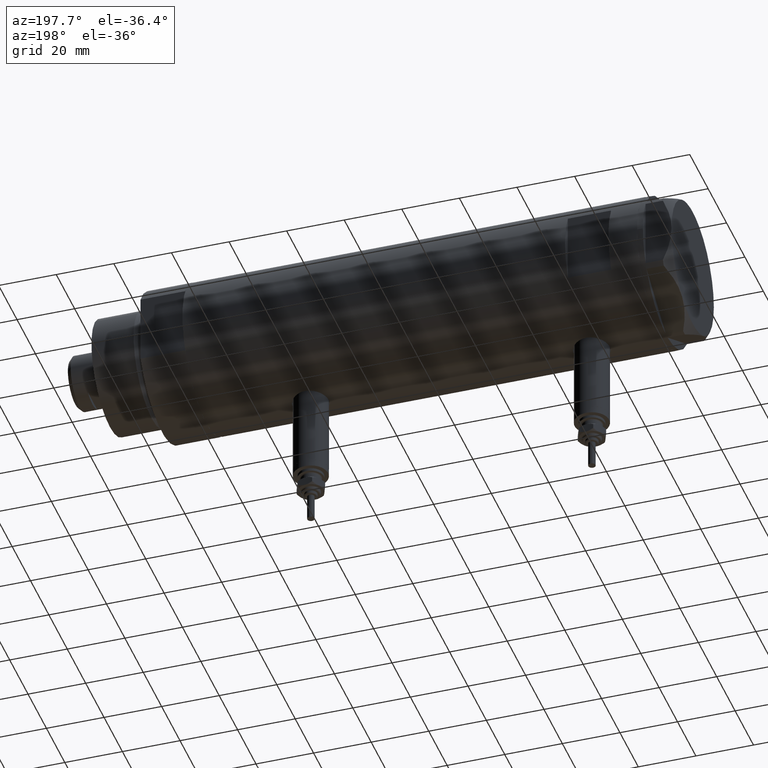
[diagram: clean part render]
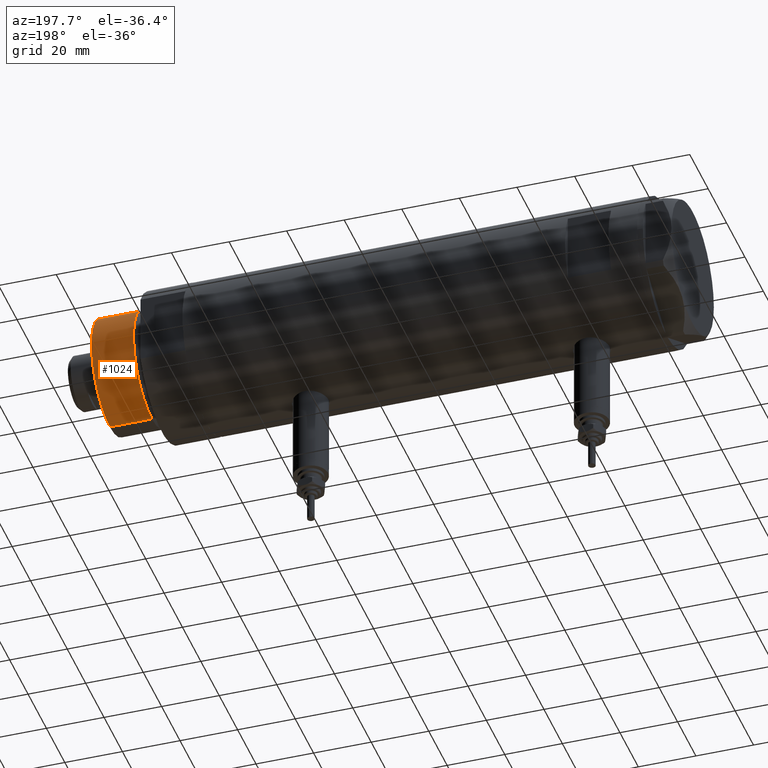
[diagram: same view with one face highlighted and labeled with its STEP entity id]
A machine part, auxiliary view. The second image highlights one B-rep face of the part: STEP entity #1024.
In plain terms, the highlighted cylindrical surface (partial cylindrical patch) has radius 20 mm, axis along (-1, -0, 0).
Its self-contained STEP definition (entity closure, byte-faithful):
#207 = VERTEX_POINT ( 'NONE', #4288 ) ;
#258 = CARTESIAN_POINT ( 'NONE',  ( 0.000000000000000000, 0.000000000000000000, 33.50000000000000000 ) ) ;
#360 = LINE ( 'NONE', #1350, #4497 ) ;
#462 = CYLINDRICAL_SURFACE ( 'NONE', #492, 19.99999999999999645 ) ;
#492 = AXIS2_PLACEMENT_3D ( 'NONE', #1314, #2412, #6215 ) ;
#613 = CIRCLE ( 'NONE', #3880, 19.99999999999999645 ) ;
#770 = VERTEX_POINT ( 'NONE', #2883 ) ;
#1024 = ADVANCED_FACE ( 'NONE', ( #6180 ), #462, .T. ) ;
#1314 = CARTESIAN_POINT ( 'NONE',  ( 0.000000000000000000, 0.000000000000000000, 33.50000000000000000 ) ) ;
#1350 = CARTESIAN_POINT ( 'NONE',  ( -19.99999999999999645, 0.000000000000000000, 33.50000000000000000 ) ) ;
#1432 = AXIS2_PLACEMENT_3D ( 'NONE', #3288, #2367, #3867 ) ;
#1789 = DIRECTION ( 'NONE',  ( -0.000000000000000000, -0.000000000000000000, -1.000000000000000000 ) ) ;
#2367 = DIRECTION ( 'NONE',  ( -0.000000000000000000, -0.000000000000000000, 1.000000000000000000 ) ) ;
#2412 = DIRECTION ( 'NONE',  ( -0.000000000000000000, -0.000000000000000000, -1.000000000000000000 ) ) ;
#2826 = EDGE_CURVE ( 'NONE', #3771, #207, #360, .T. ) ;
#2883 = CARTESIAN_POINT ( 'NONE',  ( 19.99999999999999645, 2.449293598294706119E-15, 18.87384048104053846 ) ) ;
#3181 = ORIENTED_EDGE ( 'NONE', *, *, #2826, .F. ) ;
#3288 = CARTESIAN_POINT ( 'NONE',  ( 0.000000000000000000, 0.000000000000000000, 18.87384048104053846 ) ) ;
#3328 = VERTEX_POINT ( 'NONE', #3655 ) ;
#3655 = CARTESIAN_POINT ( 'NONE',  ( 19.99999999999999645, 2.449293598294706119E-15, 33.50000000000000000 ) ) ;
#3771 = VERTEX_POINT ( 'NONE', #4985 ) ;
#3867 = DIRECTION ( 'NONE',  ( 1.000000000000000000, 0.000000000000000000, 0.000000000000000000 ) ) ;
#3880 = AXIS2_PLACEMENT_3D ( 'NONE', #258, #4156, #5663 ) ;
#4156 = DIRECTION ( 'NONE',  ( 0.000000000000000000, 0.000000000000000000, 1.000000000000000000 ) ) ;
#4288 = CARTESIAN_POINT ( 'NONE',  ( -19.99999999999999645, 0.000000000000000000, 18.87384048104053846 ) ) ;
#4371 = ORIENTED_EDGE ( 'NONE', *, *, #5234, .T. ) ;
#4497 = VECTOR ( 'NONE', #1789, 1000.000000000000000 ) ;
#4548 = EDGE_CURVE ( 'NONE', #3328, #3771, #613, .T. ) ;
#4597 = CIRCLE ( 'NONE', #1432, 19.99999999999999645 ) ;
#4697 = EDGE_CURVE ( 'NONE', #3328, #770, #5215, .T. ) ;
#4703 = ORIENTED_EDGE ( 'NONE', *, *, #4697, .T. ) ;
#4805 = DIRECTION ( 'NONE',  ( -0.000000000000000000, -0.000000000000000000, -1.000000000000000000 ) ) ;
#4835 = ORIENTED_EDGE ( 'NONE', *, *, #4548, .F. ) ;
#4985 = CARTESIAN_POINT ( 'NONE',  ( -19.99999999999999645, 0.000000000000000000, 33.50000000000000000 ) ) ;
#5215 = LINE ( 'NONE', #5834, #5713 ) ;
#5234 = EDGE_CURVE ( 'NONE', #770, #207, #4597, .T. ) ;
#5663 = DIRECTION ( 'NONE',  ( 1.000000000000000000, 0.000000000000000000, 0.000000000000000000 ) ) ;
#5713 = VECTOR ( 'NONE', #4805, 1000.000000000000000 ) ;
#5834 = CARTESIAN_POINT ( 'NONE',  ( 19.99999999999999645, 2.449293598294706119E-15, 33.50000000000000000 ) ) ;
#6125 = EDGE_LOOP ( 'NONE', ( #4835, #4703, #4371, #3181 ) ) ;
#6180 = FACE_OUTER_BOUND ( 'NONE', #6125, .T. ) ;
#6215 = DIRECTION ( 'NONE',  ( -1.000000000000000000, 0.000000000000000000, 0.000000000000000000 ) ) ;